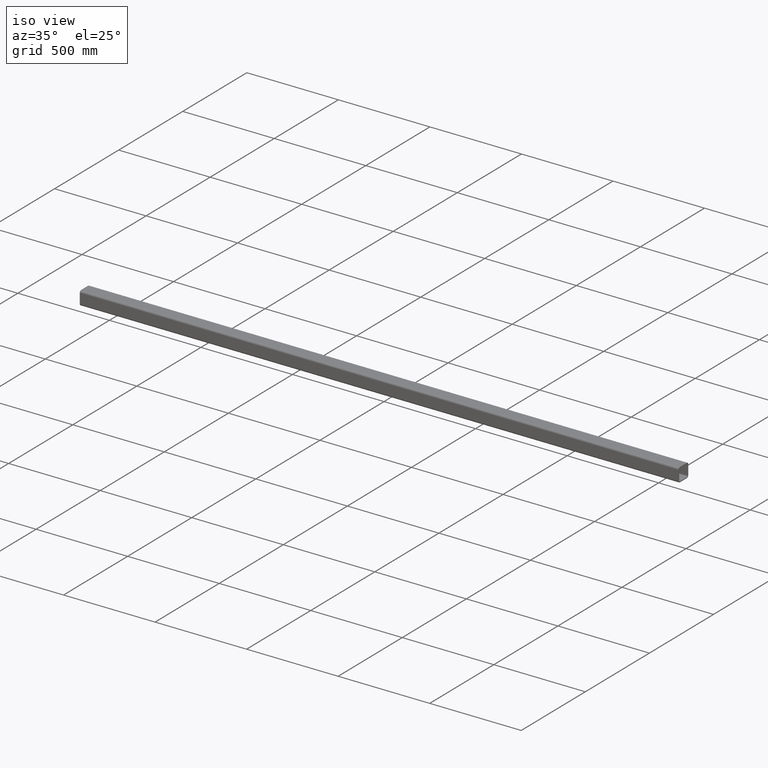
[diagram: clean part render]
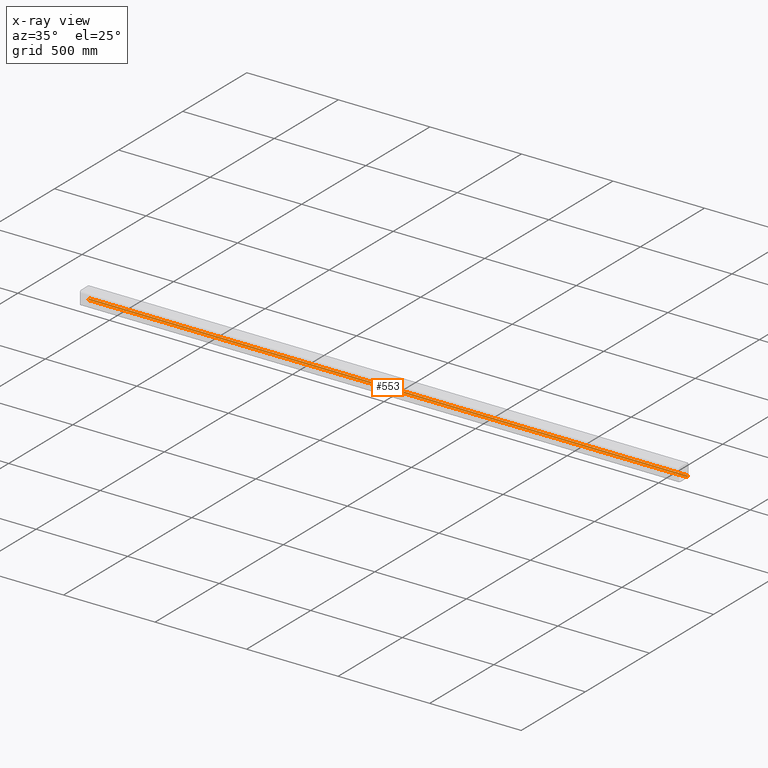
[diagram: x-ray — body ghosted, one internal face saturated and labeled with its STEP entity id]
A machine part, iso view, then the same camera in x-ray: the body is ghosted and one INTERNAL B-rep face — a face not visible from any outside direction — is saturated and labeled: STEP entity #553.
In plain terms, the highlighted cylindrical surface (edge-blend (fillet) strip) has radius 6 mm, axis along (1, 0, -0).
Its self-contained STEP definition (entity closure, byte-faithful):
#15 = VECTOR ( 'NONE', #383, 1000.000000000000000 ) ;
#40 = EDGE_LOOP ( 'NONE', ( #622, #536, #315, #286 ) ) ;
#48 = LINE ( 'NONE', #549, #15 ) ;
#66 = DIRECTION ( 'NONE',  ( -1.000000000000000000, -3.061616997868382648E-16, 0.000000000000000000 ) ) ;
#73 = CARTESIAN_POINT ( 'NONE',  ( 1635.500000000000000, 27.50000000000062528, -27.50000000000010303 ) ) ;
#109 = CARTESIAN_POINT ( 'NONE',  ( 1635.500000000000000, 33.50000000000061817, -27.50000000000010303 ) ) ;
#120 = VERTEX_POINT ( 'NONE', #109 ) ;
#125 = EDGE_CURVE ( 'NONE', #120, #436, #365, .T. ) ;
#135 = VERTEX_POINT ( 'NONE', #392 ) ;
#152 = AXIS2_PLACEMENT_3D ( 'NONE', #73, #66, #299 ) ;
#185 = DIRECTION ( 'NONE',  ( -1.000000000000000000, -3.061616997868382648E-16, 0.000000000000000000 ) ) ;
#247 = DIRECTION ( 'NONE',  ( 1.000000000000000000, 3.061616997868382648E-16, -0.000000000000000000 ) ) ;
#255 = CARTESIAN_POINT ( 'NONE',  ( -1635.500000000000000, 27.49999999999962341, -33.50000000000015632 ) ) ;
#278 = CARTESIAN_POINT ( 'NONE',  ( -1635.500000000000000, 27.49999999999962341, -33.50000000000015632 ) ) ;
#286 = ORIENTED_EDGE ( 'NONE', *, *, #545, .T. ) ;
#299 = DIRECTION ( 'NONE',  ( 0.000000000000000000, -1.000000000000000000, 0.000000000000000000 ) ) ;
#306 = LINE ( 'NONE', #255, #327 ) ;
#315 = ORIENTED_EDGE ( 'NONE', *, *, #493, .T. ) ;
#327 = VECTOR ( 'NONE', #346, 1000.000000000000000 ) ;
#336 = CIRCLE ( 'NONE', #441, 6.000000000000023093 ) ;
#346 = DIRECTION ( 'NONE',  ( 1.000000000000000000, 3.061616997868382648E-16, -0.000000000000000000 ) ) ;
#365 = CIRCLE ( 'NONE', #152, 6.000000000000023093 ) ;
#383 = DIRECTION ( 'NONE',  ( 1.000000000000000000, 3.061616997868382648E-16, -0.000000000000000000 ) ) ;
#385 = DIRECTION ( 'NONE',  ( 0.000000000000000000, -1.000000000000000000, 0.000000000000000000 ) ) ;
#392 = CARTESIAN_POINT ( 'NONE',  ( -1635.500000000000000, 33.49999999999962341, -27.50000000000010303 ) ) ;
#434 = VERTEX_POINT ( 'NONE', #278 ) ;
#435 = CARTESIAN_POINT ( 'NONE',  ( -1635.500000000000000, 27.49999999999962341, -27.50000000000010303 ) ) ;
#436 = VERTEX_POINT ( 'NONE', #641 ) ;
#441 = AXIS2_PLACEMENT_3D ( 'NONE', #435, #185, #385 ) ;
#445 = EDGE_CURVE ( 'NONE', #135, #120, #48, .T. ) ;
#493 = EDGE_CURVE ( 'NONE', #135, #434, #336, .T. ) ;
#500 = FACE_OUTER_BOUND ( 'NONE', #40, .T. ) ;
#536 = ORIENTED_EDGE ( 'NONE', *, *, #445, .F. ) ;
#545 = EDGE_CURVE ( 'NONE', #434, #436, #306, .T. ) ;
#549 = CARTESIAN_POINT ( 'NONE',  ( -1635.500000000000000, 33.49999999999962341, -27.50000000000010303 ) ) ;
#553 = ADVANCED_FACE ( 'NONE', ( #500 ), #613, .F. ) ;
#562 = CARTESIAN_POINT ( 'NONE',  ( -1635.500000000000000, 27.49999999999962341, -27.50000000000010303 ) ) ;
#610 = DIRECTION ( 'NONE',  ( 0.000000000000000000, 1.000000000000000000, 0.000000000000000000 ) ) ;
#613 = CYLINDRICAL_SURFACE ( 'NONE', #646, 6.000000000000019540 ) ;
#622 = ORIENTED_EDGE ( 'NONE', *, *, #125, .F. ) ;
#641 = CARTESIAN_POINT ( 'NONE',  ( 1635.500000000000000, 27.50000000000062528, -33.50000000000015632 ) ) ;
#646 = AXIS2_PLACEMENT_3D ( 'NONE', #562, #247, #610 ) ;